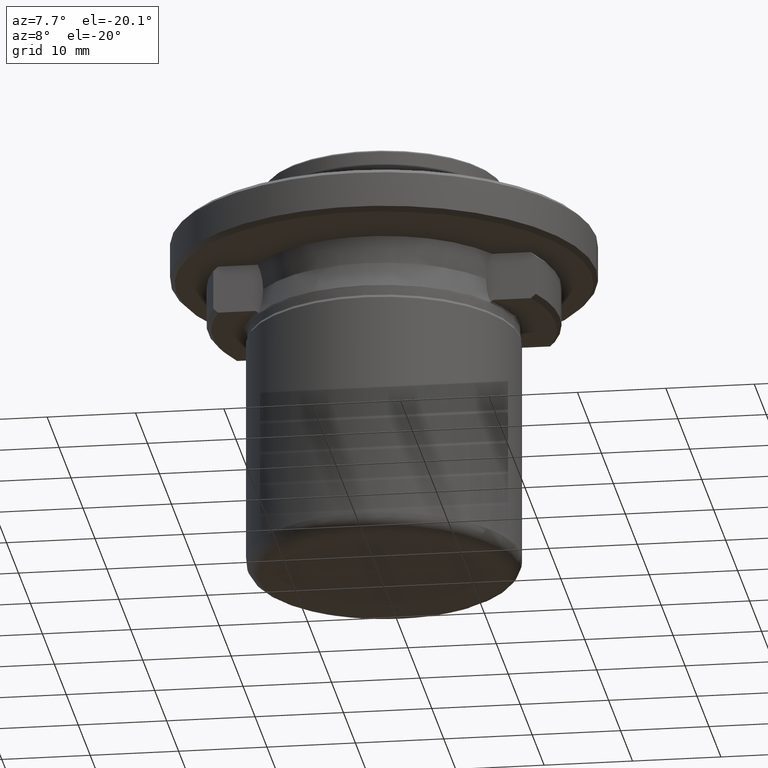
[diagram: clean part render]
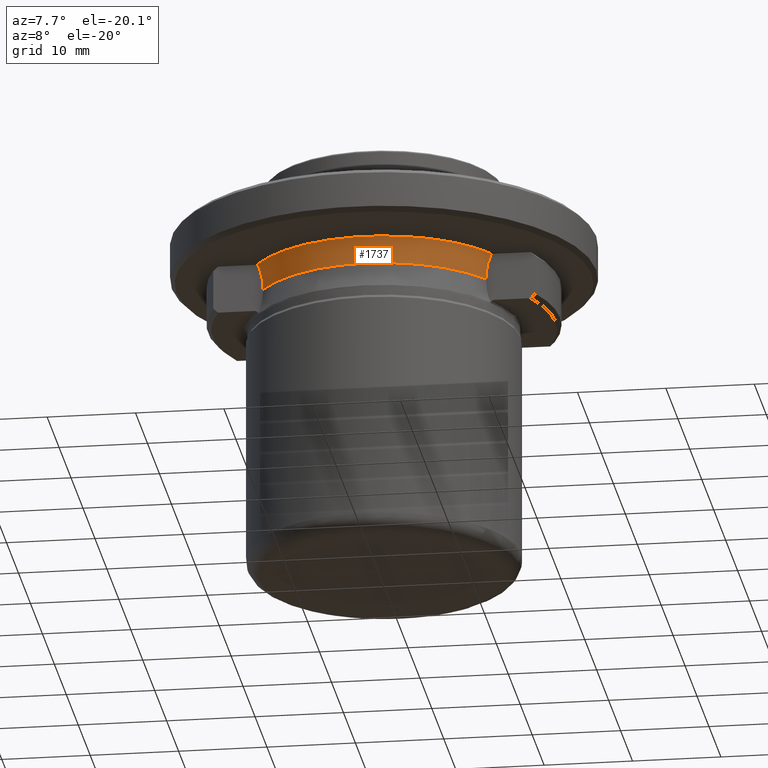
[diagram: same view with one face highlighted and labeled with its STEP entity id]
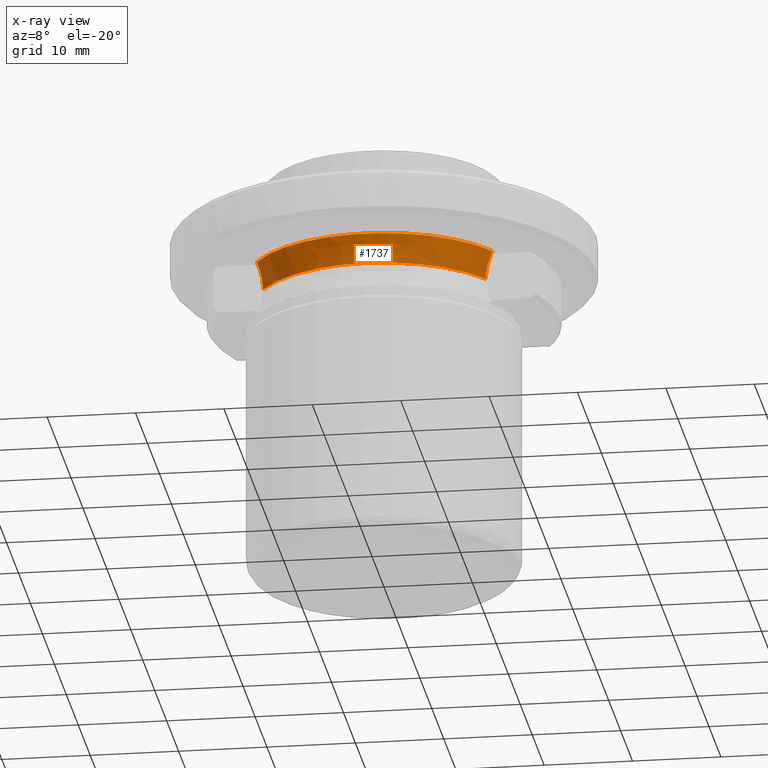
[diagram: x-ray of the same camera — body ghosted, the highlighted face saturated]
A machine part, auxiliary view. The second image highlights one B-rep face of the part: STEP entity #1737.
The next image is the same camera in x-ray: the body ghosted, the highlighted face saturated — about 0% of this face is hidden behind the body in this view.
In plain terms, the highlighted face is a freeform B-spline surface patch.
Its self-contained STEP definition (entity closure, byte-faithful):
#31 = VERTEX_POINT ( 'NONE', #1394 ) ;
#44 = ORIENTED_EDGE ( 'NONE', *, *, #447, .F. ) ;
#57 = CARTESIAN_POINT ( 'NONE',  ( 6.380965633999999800, -18.44760542900000300, 5.320036143999999500 ) ) ;
#131 = ORIENTED_EDGE ( 'NONE', *, *, #561, .F. ) ;
#179 = CARTESIAN_POINT ( 'NONE',  ( -12.60188477970642400, -7.949999999999998400, 4.763219922882414400 ) ) ;
#203 = CARTESIAN_POINT ( 'NONE',  ( -13.06160257300000200, -7.569086716999999400, 7.038194950000000300 ) ) ;
#208 = FACE_OUTER_BOUND ( 'NONE', #694, .T. ) ;
#216 =( BOUNDED_SURFACE ( )  B_SPLINE_SURFACE ( 3, 3, ( 
 ( #1867, #1259, #1731, #816 ),
 ( #1873, #966, #57, #1112 ),
 ( #203, #1267, #357, #1422 ),
 ( #515, #1586, #1914, #1279 ) ),
 .UNSPECIFIED., .F., .F., .T. ) 
 B_SPLINE_SURFACE_WITH_KNOTS ( ( 4, 4 ),
 ( 4, 4 ),
 ( 0.0000000000000000000, 1.000000000000000000 ),
 ( 0.0000000000000000000, 1.000000000000000000 ),
 .UNSPECIFIED. ) 
 GEOMETRIC_REPRESENTATION_ITEM ( )  RATIONAL_B_SPLINE_SURFACE ( (
 ( 1.000000000000000000, 0.6675925262800090900, 0.6675925262800090900, 1.000000000000000000),
 ( 0.9726495440996750800, 0.6493335663306010200, 0.6493335663306010200, 0.9726495440996750800),
 ( 0.9726495440996750800, 0.6493335663306010200, 0.6493335663306010200, 0.9726495440996750800),
 ( 1.000000000000000000, 0.6675925262800090900, 0.6675925262800090900, 1.000000000000000000) ) ) 
 REPRESENTATION_ITEM ( '' )  SURFACE ( )  );
#218 = EDGE_CURVE ( 'NONE', #1895, #31, #1611, .T. ) ;
#293 = CIRCLE ( 'NONE', #831, 14.89999999993788300 ) ;
#333 = CARTESIAN_POINT ( 'NONE',  ( -12.60188477964945100, -7.950000000000000200, 4.478485616309445300 ) ) ;
#357 = CARTESIAN_POINT ( 'NONE',  ( 6.521743957000000000, -18.85460071800000400, 7.038194949999999400 ) ) ;
#394 = DIRECTION ( 'NONE',  ( -0.0000000000000000000, 2.793435549076984100E-017, 1.000000000000000000 ) ) ;
#445 = CARTESIAN_POINT ( 'NONE',  ( 12.60188477983408700, -7.950000000000000200, 5.048052196196316300 ) ) ;
#447 = EDGE_CURVE ( 'NONE', #31, #1069, #293, .T. ) ;
#491 = CARTESIAN_POINT ( 'NONE',  ( -12.68096660111386600, -7.950000000000002000, 5.610062528188859900 ) ) ;
#515 = CARTESIAN_POINT ( 'NONE',  ( -13.75342066000000000, -7.969989367000000200, 8.593484004000002200 ) ) ;
#561 = EDGE_CURVE ( 'NONE', #1069, #838, #1644, .T. ) ;
#567 = CARTESIAN_POINT ( 'NONE',  ( -13.33503374469622000, -7.950000000000000200, 7.773842195335446600 ) ) ;
#634 = CARTESIAN_POINT ( 'NONE',  ( 12.92903265801172500, -7.950000000000069500, 6.714170475495292200 ) ) ;
#646 = CARTESIAN_POINT ( 'NONE',  ( -12.91525301281999700, -7.949999999999996600, 6.721571217286125100 ) ) ;
#694 = EDGE_LOOP ( 'NONE', ( #44, #1770, #1046, #131 ) ) ;
#795 = CARTESIAN_POINT ( 'NONE',  ( -13.33503374469622000, -7.950000000000000200, 7.773842195335446600 ) ) ;
#798 = CARTESIAN_POINT ( 'NONE',  ( 13.11138746151054600, -7.950000000000068600, 7.251408265727680400 ) ) ;
#816 = CARTESIAN_POINT ( 'NONE',  ( 12.93071184499999900, -7.493236662000000200, 3.579984865000000100 ) ) ;
#831 = AXIS2_PLACEMENT_3D ( 'NONE', #906, #1981, #1056 ) ;
#838 = VERTEX_POINT ( 'NONE', #567 ) ;
#901 = CARTESIAN_POINT ( 'NONE',  ( 13.33503374427947300, -7.950000000000000200, 7.773842195201675400 ) ) ;
#906 = CARTESIAN_POINT ( 'NONE',  ( 5.204170427930421300E-015, 2.532479434491641300E-011, 4.478485616159577600 ) ) ;
#966 = CARTESIAN_POINT ( 'NONE',  ( -6.380965633999999800, -18.44760542900000300, 5.320036143999999500 ) ) ;
#1046 = ORIENTED_EDGE ( 'NONE', *, *, #1258, .F. ) ;
#1053 = CARTESIAN_POINT ( 'NONE',  ( 13.21647750718658500, -7.950000000000000200, 7.515039186203701100 ) ) ;
#1056 = DIRECTION ( 'NONE',  ( -1.000000000000000000, 0.0000000000000000000, 0.0000000000000000000 ) ) ;
#1069 = VERTEX_POINT ( 'NONE', #1383 ) ;
#1090 = CARTESIAN_POINT ( 'NONE',  ( -12.61783294890506500, -7.950000000000000200, 5.046469899217028000 ) ) ;
#1112 = CARTESIAN_POINT ( 'NONE',  ( 12.77965490400000300, -7.405700459999999400, 5.320036143999999500 ) ) ;
#1258 = EDGE_CURVE ( 'NONE', #838, #1895, #1888, .T. ) ;
#1259 = CARTESIAN_POINT ( 'NONE',  ( -6.456389356999999900, -18.66565817500000100, 3.579984865000000600 ) ) ;
#1267 = CARTESIAN_POINT ( 'NONE',  ( -6.521743957000000000, -18.85460071800000400, 7.038194949999999400 ) ) ;
#1279 = CARTESIAN_POINT ( 'NONE',  ( 13.75342066000000000, -7.969989367000000200, 8.593484004000002200 ) ) ;
#1299 = CARTESIAN_POINT ( 'NONE',  ( 0.0000000000000000000, -6.203609322017933200E-033, 7.773842196000001300 ) ) ;
#1323 = AXIS2_PLACEMENT_3D ( 'NONE', #1299, #394, #1455 ) ;
#1383 = CARTESIAN_POINT ( 'NONE',  ( -12.60188477964945100, -7.950000000000000200, 4.478485616309445300 ) ) ;
#1393 = CARTESIAN_POINT ( 'NONE',  ( 12.85156216844219500, -7.949999999999998400, 6.439474253217602100 ) ) ;
#1394 = CARTESIAN_POINT ( 'NONE',  ( 12.60188477964879200, -7.950000000000000200, 4.478485616234512400 ) ) ;
#1422 = CARTESIAN_POINT ( 'NONE',  ( 13.06160257300000200, -7.569086716999999400, 7.038194950000000300 ) ) ;
#1455 = DIRECTION ( 'NONE',  ( 0.0000000000000000000, 1.000000000000000000, -5.586871098153968300E-017 ) ) ;
#1552 = CARTESIAN_POINT ( 'NONE',  ( 12.66535530415376300, -7.950000000000000200, 5.609358371925920600 ) ) ;
#1561 = CARTESIAN_POINT ( 'NONE',  ( -12.72843880616561100, -7.950000000000000200, 5.891492498041592400 ) ) ;
#1586 = CARTESIAN_POINT ( 'NONE',  ( -6.867173271999999600, -19.85324952300000200, 8.593484004000002200 ) ) ;
#1611 = B_SPLINE_CURVE_WITH_KNOTS ( 'NONE', 3,
 ( #901, #1053, #798, #634, #1393, #1552, #445, #1808 ),
 .UNSPECIFIED., .F., .F.,
 ( 4, 2, 2, 4 ),
 ( 0.0000000000000000000, 0.0008508907945670186100, 0.001701781589134037200, 0.003403563178268072300 ),
 .UNSPECIFIED. ) ;
#1644 = B_SPLINE_CURVE_WITH_KNOTS ( 'NONE', 3,
 ( #333, #179, #1090, #491, #1561, #646, #1709, #795 ),
 .UNSPECIFIED., .F., .F.,
 ( 4, 2, 2, 4 ),
 ( 6.548166900401175800E-015, 0.0008505270503339344100, 0.001701054100661320700, 0.003402108201316091900 ),
 .UNSPECIFIED. ) ;
#1709 = CARTESIAN_POINT ( 'NONE',  ( -13.09798608330491200, -7.949999999999996600, 7.256377663760557300 ) ) ;
#1731 = CARTESIAN_POINT ( 'NONE',  ( 6.456389356999999900, -18.66565817500000100, 3.579984865000000600 ) ) ;
#1737 = ADVANCED_FACE ( 'NONE', ( #208 ), #216, .F. ) ;
#1769 = CARTESIAN_POINT ( 'NONE',  ( 13.33503374427947300, -7.950000000000000200, 7.773842195201675400 ) ) ;
#1770 = ORIENTED_EDGE ( 'NONE', *, *, #218, .F. ) ;
#1808 = CARTESIAN_POINT ( 'NONE',  ( 12.60188477964879200, -7.950000000000000200, 4.478485616234512400 ) ) ;
#1867 = CARTESIAN_POINT ( 'NONE',  ( -12.93071184499999900, -7.493236662000000200, 3.579984865000000100 ) ) ;
#1873 = CARTESIAN_POINT ( 'NONE',  ( -12.77965490400000300, -7.405700459999999400, 5.320036143999999500 ) ) ;
#1888 = CIRCLE ( 'NONE', #1323, 15.52500000000000000 ) ;
#1895 = VERTEX_POINT ( 'NONE', #1769 ) ;
#1914 = CARTESIAN_POINT ( 'NONE',  ( 6.867173271999999600, -19.85324952300000200, 8.593484004000002200 ) ) ;
#1981 = DIRECTION ( 'NONE',  ( 0.0000000000000000000, -0.0000000000000000000, -1.000000000000000000 ) ) ;